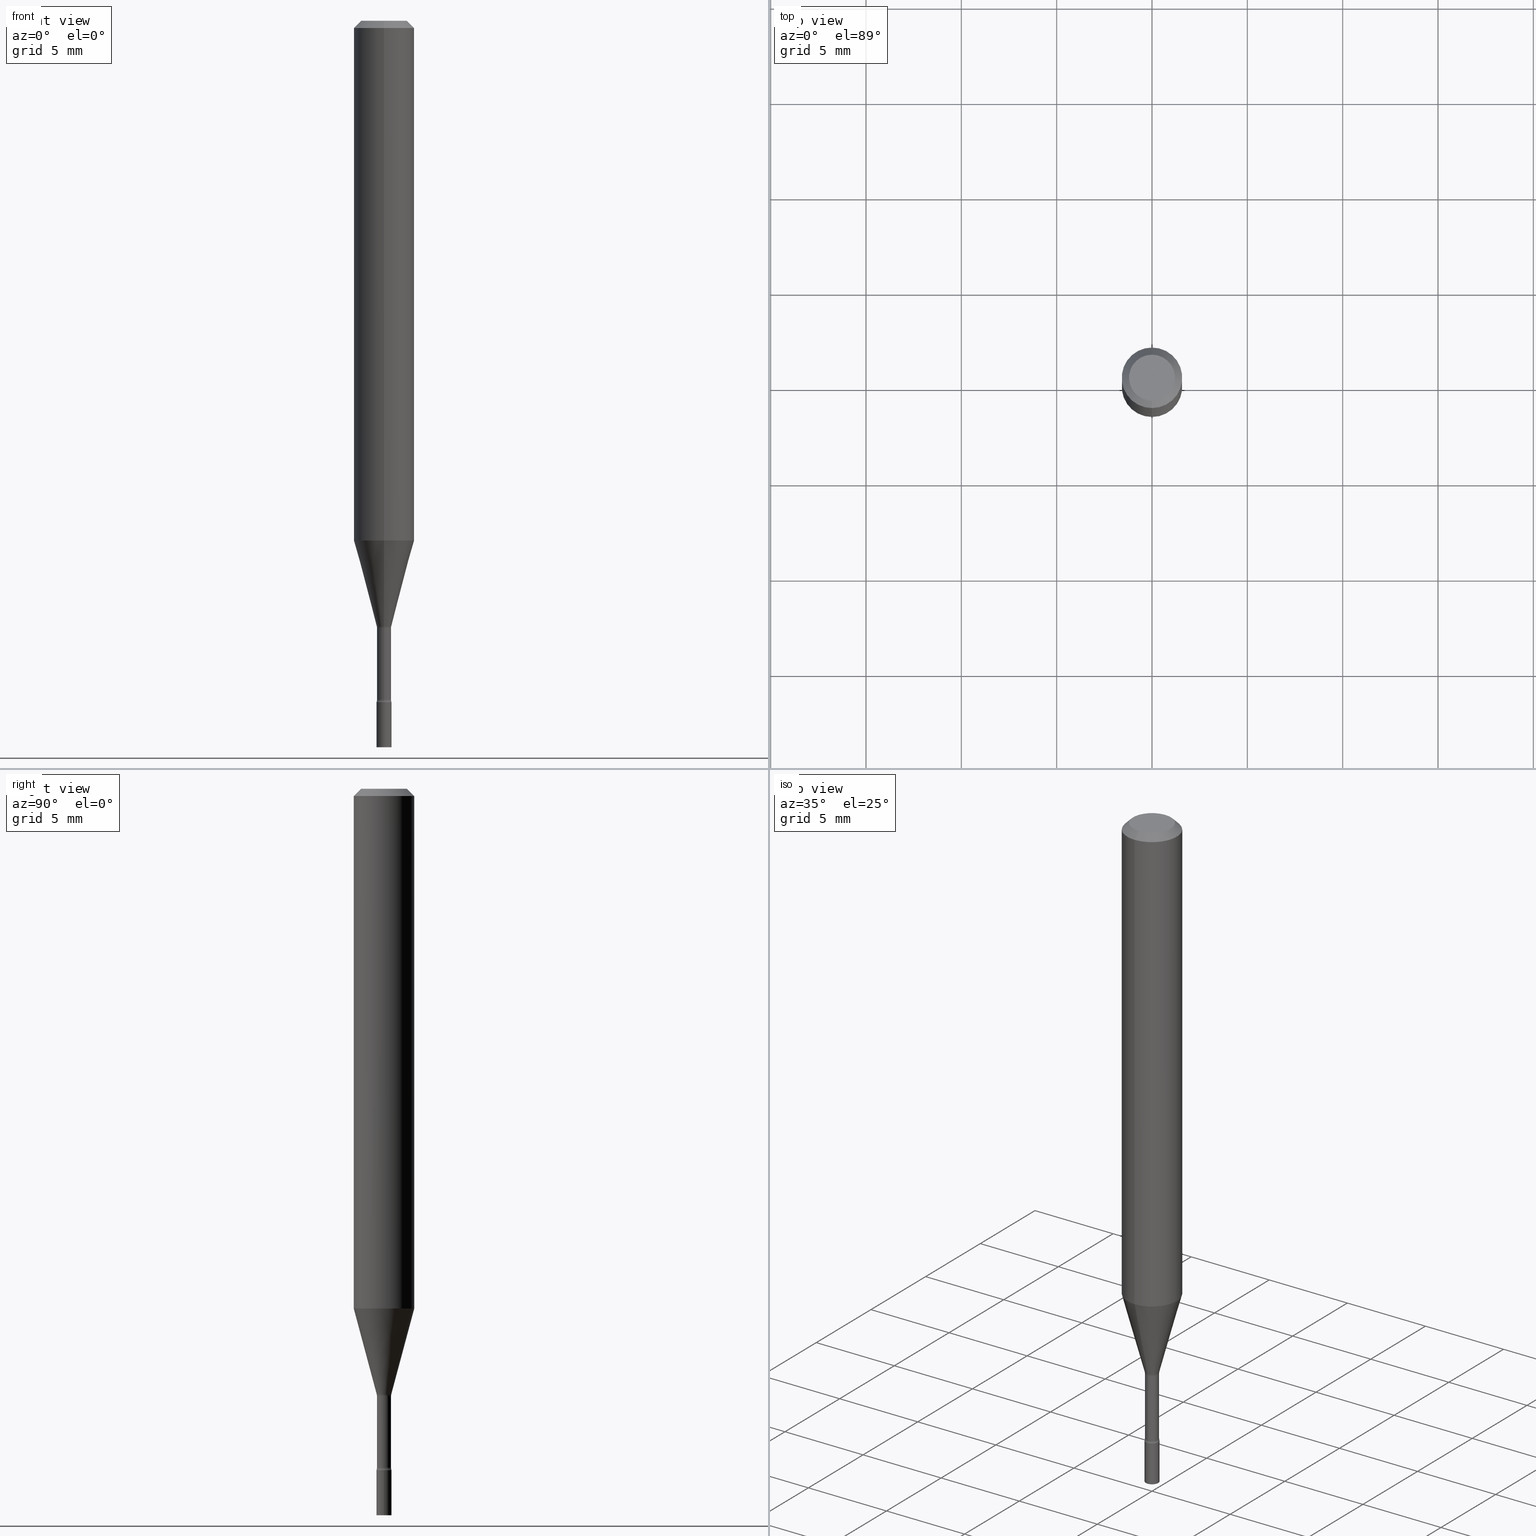
[diagram: canonical four-view strip — front | top / right | iso, engineering-drawing reading convention]
A machine part, canonical four-view strip (front | top / right | iso — engineering-drawing reading convention). The complete STEP part file that produces these views, byte-faithful:
ISO-10303-21;
HEADER;
FILE_DESCRIPTION (( 'STEP AP203' ),
    '1' );
FILE_NAME ('01316.STEP',
    '2024-03-08T21:13:43',
    ( '' ),
    ( '' ),
    'SwSTEP 2.0',
    'SolidWorks 2023',
    '' );
FILE_SCHEMA (( 'CONFIG_CONTROL_DESIGN' ));
ENDSEC;

DATA;
#1 = CARTESIAN_POINT ( 'NONE',  ( 0.000000000000000000, 0.000000000000000000, 0.000000000000000000 ) ) ;
#2 = DIRECTION ( 'NONE',  ( -2.445472227515732089E-29, 3.491476439303002674E-15, 1.000000000000000000 ) ) ;
#3 = DIRECTION ( 'NONE',  ( -6.982962677686266711E-15, -1.000000000000000000, 3.491476439303003069E-15 ) ) ;
#4 = EDGE_CURVE ( 'NONE', #138, #295, #76, .T. ) ;
#5 = CALENDAR_DATE ( 2024, 8, 3 ) ;
#6 = DIRECTION ( 'NONE',  ( 6.982962677686265922E-15, 1.000000000000000000, -3.483106191921935554E-15 ) ) ;
#7 = CC_DESIGN_PERSON_AND_ORGANIZATION_ASSIGNMENT ( #407, #452, ( #499 ) ) ;
#8 = TOROIDAL_SURFACE ( 'NONE', #297, 0.02955000000000002763, 0.01500000000000001506 ) ;
#9 = AXIS2_PLACEMENT_3D ( 'NONE', #273, #186, #345 ) ;
#10 = ORGANIZATION ( 'UNSPECIFIED', 'UNSPECIFIED', '' ) ;
#11 = CLOSED_SHELL ( 'NONE', ( #375, #119, #398, #304, #216, #336, #469, #190, #46, #418, #438, #26, #290, #428 ) ) ;
#12 = CARTESIAN_POINT ( 'NONE',  ( 3.668203209277704895E-29, -5.237222008264718177E-15, -1.500000000000000222 ) ) ;
#13 = COORDINATED_UNIVERSAL_TIME_OFFSET ( 5, 0, .BEHIND. ) ;
#14 = ORIENTED_EDGE ( 'NONE', *, *, #245, .T. ) ;
#15 = EDGE_LOOP ( 'NONE', ( #503, #497, #340, #147 ) ) ;
#16 = PERSON_AND_ORGANIZATION ( #102, #10 ) ;
#17 = ADVANCED_FACE ( 'NONE', ( #155 ), #66, .T. ) ;
#18 = ORIENTED_EDGE ( 'NONE', *, *, #139, .F. ) ;
#19 = CIRCLE ( 'NONE', #389, 0.06250000000000000000 ) ;
#20 = VERTEX_POINT ( 'NONE', #426 ) ;
#21 = ORIENTED_EDGE ( 'NONE', *, *, #256, .F. ) ;
#22 = ORIENTED_EDGE ( 'NONE', *, *, #283, .T. ) ;
#23 = DIRECTION ( 'NONE',  ( -6.982962677686265922E-15, -1.000000000000000000, 0.000000000000000000 ) ) ;
#24 = CIRCLE ( 'NONE', #348, 0.06250000000000000000 ) ;
#25 = TOROIDAL_SURFACE ( 'NONE', #293, 0.02955000000000000335, 0.01500000000000002720 ) ;
#26 = ADVANCED_FACE ( 'NONE', ( #352 ), #8, .F. ) ;
#27 = DIRECTION ( 'NONE',  ( 2.445472227515732089E-29, -3.491476439303002674E-15, -1.000000000000000000 ) ) ;
#28 = EDGE_CURVE ( 'NONE', #59, #220, #60, .T. ) ;
#29 = CARTESIAN_POINT ( 'NONE',  ( 3.440774610302487541E-29, -4.912514243752305891E-15, -1.407000000000000028 ) ) ;
#30 = CC_DESIGN_PERSON_AND_ORGANIZATION_ASSIGNMENT ( #361, #249, ( #502 ) ) ;
#31 = DIRECTION ( 'NONE',  ( -2.445472227515732089E-29, 3.491476439303002674E-15, 1.000000000000000000 ) ) ;
#32 = PLANE ( 'NONE',  #110 ) ;
#33 = DIRECTION ( 'NONE',  ( -2.445468806185136597E-29, 3.491481338843145583E-15, 1.000000000000000000 ) ) ;
#34 = CIRCLE ( 'NONE', #333, 0.01455000000000000217 ) ;
#35 = FACE_OUTER_BOUND ( 'NONE', #179, .T. ) ;
#36 = DIRECTION ( 'NONE',  ( -6.982962677686265922E-15, -1.000000000000000000, 4.370956789862821150E-15 ) ) ;
#37 = CARTESIAN_POINT ( 'NONE',  ( 1.101341240428499544E-16, 0.01549999999999509062, -1.407000000000000028 ) ) ;
#38 = CARTESIAN_POINT ( 'NONE',  ( 2.755524256971568781E-16, 0.01506111260565961597, -1.250092501787273269 ) ) ;
#39 = DIRECTION ( 'NONE',  ( -1.807323732225328562E-15, -0.2588190451025179639, 0.9659258262890689783 ) ) ;
#40 = DIRECTION ( 'NONE',  ( 2.438088387897960049E-29, -3.491481338843145188E-15, -1.000000000000000000 ) ) ;
#41 = DIRECTION ( 'NONE',  ( -2.445472227515732089E-29, 3.491476439303002674E-15, 1.000000000000000000 ) ) ;
#42 = CARTESIAN_POINT ( 'NONE',  ( 3.066560516747692945E-29, -4.378223425909886910E-15, -1.253974787463811191 ) ) ;
#43 = PERSON_AND_ORGANIZATION ( #102, #10 ) ;
#44 = VECTOR ( 'NONE', #310, 39.37007874015748143 ) ;
#45 = DIRECTION ( 'NONE',  ( -6.982962677686266711E-15, -1.000000000000000000, 0.000000000000000000 ) ) ;
#46 = ADVANCED_FACE ( 'NONE', ( #189 ), #251, .T. ) ;
#47 = DIRECTION ( 'NONE',  ( -2.445472227515732089E-29, 3.491476439303002674E-15, 1.000000000000000000 ) ) ;
#48 = COORDINATED_UNIVERSAL_TIME_OFFSET ( 5, 0, .BEHIND. ) ;
#49 = CC_DESIGN_DATE_AND_TIME_ASSIGNMENT ( #365, #486, ( #152 ) ) ;
#50 = CARTESIAN_POINT ( 'NONE',  ( -1.051711872097511524E-16, -0.01506111260566834510, -1.250092501787273269 ) ) ;
#51 = APPROVAL_STATUS ( 'not_yet_approved' ) ;
#52 = DIRECTION ( 'NONE',  ( -2.445472227515732369E-29, 3.491476439303002674E-15, 1.000000000000000000 ) ) ;
#53 = ORIENTED_EDGE ( 'NONE', *, *, #322, .F. ) ;
#54 = SECURITY_CLASSIFICATION_LEVEL ( 'unclassified' ) ;
#55 = CIRCLE ( 'NONE', #317, 0.01455000000000000217 ) ;
#56 = ORIENTED_EDGE ( 'NONE', *, *, #342, .F. ) ;
#57 = MANIFOLD_SOLID_BREP ( 'Body-Move/Copy2[2]', #11 ) ;
#58 = ORIENTED_EDGE ( 'NONE', *, *, #506, .T. ) ;
#59 = VERTEX_POINT ( 'NONE', #150 ) ;
#60 = CIRCLE ( 'NONE', #347, 0.06250000000000000000 ) ;
#61 = VECTOR ( 'NONE', #441, 39.37007874015748143 ) ;
#62 = ORIENTED_EDGE ( 'NONE', *, *, #82, .F. ) ;
#63 = ORIENTED_EDGE ( 'NONE', *, *, #161, .T. ) ;
#64 = ORIENTED_EDGE ( 'NONE', *, *, #325, .T. ) ;
#65 = CARTESIAN_POINT ( 'NONE',  ( 1.033839680530946048E-16, 0.01455000000000000737, -5.080098219185871194E-17 ) ) ;
#66 = CYLINDRICAL_SURFACE ( 'NONE', #231, 0.01549999999999999989 ) ;
#67 = AXIS2_PLACEMENT_3D ( 'NONE', #353, #225, #516 ) ;
#68 = EDGE_CURVE ( 'NONE', #371, #493, #87, .T. ) ;
#69 = EDGE_LOOP ( 'NONE', ( #312, #456, #104, #474 ) ) ;
#70 = DIRECTION ( 'NONE',  ( -6.982962677686265922E-15, -1.000000000000000000, 0.000000000000000000 ) ) ;
#71 = DIRECTION ( 'NONE',  ( -1.000000000000000000, 6.982962677686265922E-15, -4.876176775795935793E-29 ) ) ;
#72 = DIRECTION ( 'NONE',  ( -2.445472227515732089E-29, 3.491476439303002674E-15, 1.000000000000000000 ) ) ;
#73 = CARTESIAN_POINT ( 'NONE',  ( 3.316907271900976096E-16, 0.04749999999999999362, -1.803022026949055047E-16 ) ) ;
#74 = DIRECTION ( 'NONE',  ( -2.445472227515732089E-29, 3.491476439303002674E-15, 1.000000000000000000 ) ) ;
#75 = CC_DESIGN_APPROVAL ( #124, ( #502 ) ) ;
#76 = CIRCLE ( 'NONE', #369, 0.01506111260566398054 ) ;
#77 = CARTESIAN_POINT ( 'NONE',  ( 3.057066494946437721E-29, -4.364668516939611212E-15, -1.250092501787273269 ) ) ;
#78 = DIRECTION ( 'NONE',  ( -6.982962677686265922E-15, -1.000000000000000000, 0.000000000000000000 ) ) ;
#79 = DIRECTION ( 'NONE',  ( -2.445472227515732089E-29, 3.491476439303002674E-15, 1.000000000000000000 ) ) ;
#80 = DIRECTION ( 'NONE',  ( -2.445472227515732089E-29, 3.491476439303002674E-15, 1.000000000000000000 ) ) ;
#81 = CARTESIAN_POINT ( 'NONE',  ( 0.01549999999999999989, -1.082359215041371286E-16, 7.558074002483699918E-31 ) ) ;
#82 = EDGE_CURVE ( 'NONE', #373, #453, #107, .T. ) ;
#83 = DIRECTION ( 'NONE',  ( -2.445472227515732089E-29, 3.491476439303002674E-15, 1.000000000000000000 ) ) ;
#84 = DIRECTION ( 'NONE',  ( -2.445468806185136877E-29, 3.491481338843145188E-15, 1.000000000000000000 ) ) ;
#85 = EDGE_CURVE ( 'NONE', #377, #254, #19, .T. ) ;
#86 = COORDINATED_UNIVERSAL_TIME_OFFSET ( 5, 0, .BEHIND. ) ;
#87 = CIRCLE ( 'NONE', #9, 0.01549999999999999989 ) ;
#88 = DIRECTION ( 'NONE',  ( 1.000000000000000000, -7.105427357601001070E-15, 4.926315448540020713E-29 ) ) ;
#89 =( NAMED_UNIT ( * ) PLANE_ANGLE_UNIT ( ) SI_UNIT ( $, .RADIAN. ) );
#90 = CARTESIAN_POINT ( 'NONE',  ( 3.668208341273605262E-31, -5.237214658954514982E-17, -0.01500000000000003067 ) ) ;
#91 = DATE_AND_TIME ( #128, #445 ) ;
#92 = CARTESIAN_POINT ( 'NONE',  ( -1.051711872097511524E-16, -0.01506111260566834510, -1.250092501787273269 ) ) ;
#93 = APPROVAL_ROLE ( '' ) ;
#94 = VECTOR ( 'NONE', #475, 39.37007874015748143 ) ;
#95 = LOCAL_TIME ( 16, 13, 43.00000000000000000, #490 ) ;
#96 = EDGE_LOOP ( 'NONE', ( #330, #126, #460, #22 ) ) ;
#97 = PRODUCT_DEFINITION_SHAPE ( 'NONE', 'NONE',  #306 ) ;
#98 = EDGE_LOOP ( 'NONE', ( #258, #341 ) ) ;
#99 = ADVANCED_FACE ( 'NONE', ( #386 ), #221, .T. ) ;
#100 = ORIENTED_EDGE ( 'NONE', *, *, #505, .T. ) ;
#101 = EDGE_CURVE ( 'NONE', #472, #20, #243, .T. ) ;
#102 = PERSON ( 'UNSPECIFIED', 'UNSPECIFIED', 'UNSPECIFIED', ('UNSPECIFIED'), ('UNSPECIFIED'), ('UNSPECIFIED') ) ;
#103 = CIRCLE ( 'NONE', #292, 0.04749999999999999362 ) ;
#104 = ORIENTED_EDGE ( 'NONE', *, *, #457, .F. ) ;
#105 = CARTESIAN_POINT ( 'NONE',  ( 3.427927750093484217E-29, -4.894172332144594873E-15, -1.401746667724196538 ) ) ;
#106 = EDGE_CURVE ( 'NONE', #254, #220, #391, .T. ) ;
#107 = LINE ( 'NONE', #65, #44 ) ;
#108 = ORIENTED_EDGE ( 'NONE', *, *, #175, .T. ) ;
#109 = VECTOR ( 'NONE', #52, 39.37007874015748143 ) ;
#110 = AXIS2_PLACEMENT_3D ( 'NONE', #514, #473, #277 ) ;
#111 = PLANE ( 'NONE',  #261 ) ;
#112 = CARTESIAN_POINT ( 'NONE',  ( 0.000000000000000000, 0.000000000000000000, 0.000000000000000000 ) ) ;
#113 = LINE ( 'NONE', #227, #253 ) ;
#114 = ORIENTED_EDGE ( 'NONE', *, *, #85, .T. ) ;
#115 = LINE ( 'NONE', #440, #368 ) ;
#116 = CARTESIAN_POINT ( 'NONE',  ( 0.000000000000000000, 0.000000000000000000, 0.000000000000000000 ) ) ;
#117 = CARTESIAN_POINT ( 'NONE',  ( -1.016021069603352178E-16, -0.01455000000000000737, 5.080098219185871194E-17 ) ) ;
#118 = DIRECTION ( 'NONE',  ( -6.982962677686265922E-15, -1.000000000000000000, 3.491476439303002674E-15 ) ) ;
#119 = ADVANCED_FACE ( 'NONE', ( #184 ), #316, .T. ) ;
#120 = FACE_OUTER_BOUND ( 'NONE', #96, .T. ) ;
#121 = LINE ( 'NONE', #236, #182 ) ;
#122 = EDGE_CURVE ( 'NONE', #142, #371, #482, .T. ) ;
#123 = DIRECTION ( 'NONE',  ( -6.982962677686265922E-15, -1.000000000000000000, 3.491476439303002674E-15 ) ) ;
#124 = APPROVAL ( #173, 'UNSPECIFIED' ) ;
#125 = APPROVAL_DATE_TIME ( #412, #124 ) ;
#126 = ORIENTED_EDGE ( 'NONE', *, *, #287, .F. ) ;
#127 = LINE ( 'NONE', #81, #409 ) ;
#128 = CALENDAR_DATE ( 2024, 8, 3 ) ;
#129 = AXIS2_PLACEMENT_3D ( 'NONE', #397, #360, #118 ) ;
#130 = APPROVAL_PERSON_ORGANIZATION ( #16, #124, #399 ) ;
#131 = FACE_OUTER_BOUND ( 'NONE', #470, .T. ) ;
#132 = PERSON_AND_ORGANIZATION_ROLE ( 'creator' ) ;
#133 = CARTESIAN_POINT ( 'NONE',  ( 3.057066494946437721E-29, -4.364668516939611212E-15, -1.250092501787273269 ) ) ;
#134 = APPLICATION_PROTOCOL_DEFINITION ( 'international standard', 'config_control_design', 1994, #387 ) ;
#135 = ORIENTED_EDGE ( 'NONE', *, *, #106, .T. ) ;
#136 = AXIS2_PLACEMENT_3D ( 'NONE', #314, #27, #263 ) ;
#137 = LOCAL_TIME ( 16, 13, 43.00000000000000000, #13 ) ;
#138 = VERTEX_POINT ( 'NONE', #38 ) ;
#139 = EDGE_CURVE ( 'NONE', #338, #335, #201, .T. ) ;
#140 = EDGE_LOOP ( 'NONE', ( #114, #135, #181, #53 ) ) ;
#141 = CC_DESIGN_DATE_AND_TIME_ASSIGNMENT ( #91, #252, ( #306 ) ) ;
#142 = VERTEX_POINT ( 'NONE', #197 ) ;
#143 = CIRCLE ( 'NONE', #298, 0.01455000000000001084 ) ;
#144 = AXIS2_PLACEMENT_3D ( 'NONE', #77, #235, #392 ) ;
#145 = ORIENTED_EDGE ( 'NONE', *, *, #325, .F. ) ;
#146 = DESIGN_CONTEXT ( 'detailed design', #387, 'design' ) ;
#147 = ORIENTED_EDGE ( 'NONE', *, *, #161, .F. ) ;
#148 = CARTESIAN_POINT ( 'NONE',  ( 3.057066494946437721E-29, -4.364668516939611212E-15, -1.250092501787273269 ) ) ;
#149 = CARTESIAN_POINT ( 'NONE',  ( 0.01549999999999999989, -5.020750165256442268E-15, -1.407000000000000028 ) ) ;
#150 = CARTESIAN_POINT ( 'NONE',  ( -4.364351673553912750E-16, -0.06250000000000005551, -0.01499999999999981209 ) ) ;
#151 = VECTOR ( 'NONE', #512, 39.37007874015748143 ) ;
#152 = SECURITY_CLASSIFICATION ( '', '', #54 ) ;
#153 = CARTESIAN_POINT ( 'NONE',  ( 3.440779424114635715E-29, -4.912507350099324205E-15, -1.407000000000000028 ) ) ;
#154 = DIRECTION ( 'NONE',  ( -6.982962677686265922E-15, -1.000000000000000000, 3.491476439303002674E-15 ) ) ;
#155 = FACE_OUTER_BOUND ( 'NONE', #218, .T. ) ;
#156 = DIRECTION ( 'NONE',  ( 1.000000000000000000, -7.105427357601001070E-15, 4.926315448540020713E-29 ) ) ;
#157 = CARTESIAN_POINT ( 'NONE',  ( 3.427932545932245899E-29, -4.894165464230526570E-15, -1.401746667724196538 ) ) ;
#158 = DIRECTION ( 'NONE',  ( 7.105427357601001859E-15, 1.000000000000000000, 0.000000000000000000 ) ) ;
#159 = APPROVAL_PERSON_ORGANIZATION ( #329, #363, #405 ) ;
#160 = FACE_OUTER_BOUND ( 'NONE', #343, .T. ) ;
#161 = EDGE_CURVE ( 'NONE', #254, #377, #233, .T. ) ;
#162 = FACE_OUTER_BOUND ( 'NONE', #140, .T. ) ;
#163 = DIRECTION ( 'NONE',  ( -2.445472227515732089E-29, 3.491476439303002674E-15, 1.000000000000000000 ) ) ;
#164 = MECHANICAL_CONTEXT ( 'NONE', #187, 'mechanical' ) ;
#165 = CARTESIAN_POINT ( 'NONE',  ( 7.070873529321127963E-46, -1.009530513376364482E-31, -2.891414365602579596E-17 ) ) ;
#166 = DATE_AND_TIME ( #5, #454 ) ;
#167 = CARTESIAN_POINT ( 'NONE',  ( -1.016021069603045262E-16, -0.01455000000000438061, -1.253974787463811191 ) ) ;
#168 = VECTOR ( 'NONE', #39, 39.37007874015749564 ) ;
#169 = APPLICATION_PROTOCOL_DEFINITION ( 'international standard', 'config_control_design', 1994, #187 ) ;
#170 = LINE ( 'NONE', #50, #168 ) ;
#171 = DIRECTION ( 'NONE',  ( 1.000000000000000000, 0.000000000000000000, 0.000000000000000000 ) ) ;
#172 = EDGE_LOOP ( 'NONE', ( #331, #224, #431, #424 ) ) ;
#173 = APPROVAL_STATUS ( 'not_yet_approved' ) ;
#174 = ORIENTED_EDGE ( 'NONE', *, *, #417, .F. ) ;
#175 = EDGE_CURVE ( 'NONE', #449, #59, #121, .T. ) ;
#176 = CIRCLE ( 'NONE', #203, 0.01506111260566398054 ) ;
#177 = AXIS2_PLACEMENT_3D ( 'NONE', #73, #200, #270 ) ;
#178 = EDGE_CURVE ( 'NONE', #338, #373, #143, .T. ) ;
#179 = EDGE_LOOP ( 'NONE', ( #466, #302, #255, #56 ) ) ;
#180 = ORIENTED_EDGE ( 'NONE', *, *, #457, .T. ) ;
#181 = ORIENTED_EDGE ( 'NONE', *, *, #28, .F. ) ;
#182 = VECTOR ( 'NONE', #241, 39.37007874015748143 ) ;
#183 = CIRCLE ( 'NONE', #234, 0.01500000000000002720 ) ;
#184 = FACE_OUTER_BOUND ( 'NONE', #264, .T. ) ;
#185 = UNCERTAINTY_MEASURE_WITH_UNIT (LENGTH_MEASURE( 1.000000000000000082E-05 ), #484, 'distance_accuracy_value', 'NONE');
#186 = DIRECTION ( 'NONE',  ( -2.445468806185136597E-29, 3.491481338843145583E-15, 1.000000000000000000 ) ) ;
#187 = APPLICATION_CONTEXT ( 'configuration controlled 3d designs of mechanical parts and assemblies' ) ;
#188 = DIRECTION ( 'NONE',  ( 1.000000000000000000, -6.982962677686238312E-15, 0.000000000000000000 ) ) ;
#189 = FACE_OUTER_BOUND ( 'NONE', #250, .T. ) ;
#190 = ADVANCED_FACE ( 'NONE', ( #401 ), #437, .T. ) ;
#191 = DIRECTION ( 'NONE',  ( -6.982962677686265922E-15, -1.000000000000000000, 3.491476439303002674E-15 ) ) ;
#192 = DIRECTION ( 'NONE',  ( 1.000000000000000000, -6.982962677686266711E-15, 4.876176775795935232E-29 ) ) ;
#193 = EDGE_CURVE ( 'NONE', #373, #338, #326, .T. ) ;
#194 = PLANE ( 'NONE',  #510 ) ;
#195 = EDGE_LOOP ( 'NONE', ( #215, #459 ) ) ;
#196 = CARTESIAN_POINT ( 'NONE',  ( -2.063465471255985244E-16, -0.02955000000000438526, -1.253974787463811191 ) ) ;
#197 = CARTESIAN_POINT ( 'NONE',  ( -0.01549999999999999989, -4.964734001965696802E-15, -1.500000000000000222 ) ) ;
#198 = DIRECTION ( 'NONE',  ( -6.982962677686263555E-15, -1.000000000000000000, 0.000000000000000000 ) ) ;
#199 = EDGE_CURVE ( 'NONE', #20, #472, #461, .T. ) ;
#200 = DIRECTION ( 'NONE',  ( 2.445472227515731808E-29, -3.491476439303002674E-15, -1.000000000000000000 ) ) ;
#201 = LINE ( 'NONE', #117, #61 ) ;
#202 = CARTESIAN_POINT ( 'NONE',  ( 3.066560516747692945E-29, -4.378223425909886910E-15, -1.253974787463811191 ) ) ;
#203 = AXIS2_PLACEMENT_3D ( 'NONE', #404, #281, #279 ) ;
#204 = LENGTH_MEASURE_WITH_UNIT ( LENGTH_MEASURE( 0.02539999999999999897 ), #307 );
#205 = CARTESIAN_POINT ( 'NONE',  ( -4.364351673553916201E-16, -0.06250000000000000000, 2.182172774564376671E-16 ) ) ;
#206 = CARTESIAN_POINT ( 'NONE',  ( 0.000000000000000000, 0.000000000000000000, 0.000000000000000000 ) ) ;
#207 = CARTESIAN_POINT ( 'NONE',  ( 0.000000000000000000, 0.000000000000000000, 0.000000000000000000 ) ) ;
#208 = DATE_AND_TIME ( #240, #95 ) ;
#209 = FACE_OUTER_BOUND ( 'NONE', #332, .T. ) ;
#210 = CIRCLE ( 'NONE', #501, 0.04749999999999999362 ) ;
#211 = PERSON_AND_ORGANIZATION ( #102, #10 ) ;
#212 = CIRCLE ( 'NONE', #67, 0.01549999999999999989 ) ;
#213 = ORIENTED_EDGE ( 'NONE', *, *, #139, .T. ) ;
#214 = APPROVAL_DATE_TIME ( #208, #217 ) ;
#215 = ORIENTED_EDGE ( 'NONE', *, *, #199, .F. ) ;
#216 = ADVANCED_FACE ( 'NONE', ( #162 ), #320, .T. ) ;
#217 = APPROVAL ( #51, 'UNSPECIFIED' ) ;
#218 = EDGE_LOOP ( 'NONE', ( #515, #100, #14, #496 ) ) ;
#219 = EDGE_LOOP ( 'NONE', ( #374, #63, #259, #410 ) ) ;
#220 = VERTEX_POINT ( 'NONE', #447 ) ;
#221 = CYLINDRICAL_SURFACE ( 'NONE', #477, 0.01549999999999999989 ) ;
#222 = CONICAL_SURFACE ( 'NONE', #519, 0.01506111260566398054, 0.2617993877991501295 ) ;
#223 = AXIS2_PLACEMENT_3D ( 'NONE', #480, #395, #154 ) ;
#224 = ORIENTED_EDGE ( 'NONE', *, *, #178, .F. ) ;
#225 = DIRECTION ( 'NONE',  ( -2.445468806185136597E-29, 3.491481338843145583E-15, 1.000000000000000000 ) ) ;
#226 = EDGE_CURVE ( 'NONE', #220, #59, #24, .T. ) ;
#227 = CARTESIAN_POINT ( 'NONE',  ( 4.364351673553919652E-16, 0.06249999999999995143, -0.01500000000000024751 ) ) ;
#228 = CC_DESIGN_PERSON_AND_ORGANIZATION_ASSIGNMENT ( #443, #132, ( #306 ) ) ;
#229 = DIRECTION ( 'NONE',  ( -2.445472227515732089E-29, 3.491476439303002674E-15, 1.000000000000000000 ) ) ;
#230 = CARTESIAN_POINT ( 'NONE',  ( -4.364351673553655384E-16, -0.06250000000000376088, -1.073048163777072794 ) ) ;
#231 = AXIS2_PLACEMENT_3D ( 'NONE', #112, #465, #267 ) ;
#232 = CARTESIAN_POINT ( 'NONE',  ( 0.000000000000000000, 0.000000000000000000, 0.000000000000000000 ) ) ;
#233 = CIRCLE ( 'NONE', #467, 0.06250000000000000000 ) ;
#234 = AXIS2_PLACEMENT_3D ( 'NONE', #344, #156, #315 ) ;
#235 = DIRECTION ( 'NONE',  ( -2.445472227515732089E-29, 3.491476439303002674E-15, 1.000000000000000000 ) ) ;
#236 = CARTESIAN_POINT ( 'NONE',  ( -4.287811248607203282E-16, -0.06250000000000005551, -0.01499999999999981209 ) ) ;
#237 = CARTESIAN_POINT ( 'NONE',  ( 3.427927750093484217E-29, -4.894172332144594873E-15, -1.401746667724196538 ) ) ;
#238 = CARTESIAN_POINT ( 'NONE',  ( 3.440779424114635715E-29, -4.912507350099324205E-15, -1.407000000000000028 ) ) ;
#239 = DIRECTION ( 'NONE',  ( -6.982962677686265922E-15, -1.000000000000000000, 3.483106191921935554E-15 ) ) ;
#240 = CALENDAR_DATE ( 2024, 8, 3 ) ;
#241 = DIRECTION ( 'NONE',  ( -4.851104656540964275E-15, -0.7071067811865500152, -0.7071067811865450192 ) ) ;
#242 = DIRECTION ( 'NONE',  ( -6.982962677686266711E-15, -1.000000000000000000, 0.000000000000000000 ) ) ;
#243 = CIRCLE ( 'NONE', #308, 0.01549999999999999989 ) ;
#244 = APPROVAL_STATUS ( 'not_yet_approved' ) ;
#245 = EDGE_CURVE ( 'NONE', #381, #493, #127, .T. ) ;
#246 = CARTESIAN_POINT ( 'NONE',  ( 2.099653784171440428E-16, 0.02954999999999512877, -1.401746667724196538 ) ) ;
#247 = PERSON_AND_ORGANIZATION ( #102, #10 ) ;
#248 = CARTESIAN_POINT ( 'NONE',  ( 4.440892098500886486E-16, 0.06249999999999623218, -1.073048163777073238 ) ) ;
#249 = PERSON_AND_ORGANIZATION_ROLE ( 'design_supplier' ) ;
#250 = EDGE_LOOP ( 'NONE', ( #337, #145, #498, #382 ) ) ;
#251 = CONICAL_SURFACE ( 'NONE', #136, 0.06250000000000000000, 0.7853981633974483900 ) ;
#252 = DATE_TIME_ROLE ( 'creation_date' ) ;
#253 = VECTOR ( 'NONE', #511, 39.37007874015748143 ) ;
#254 = VERTEX_POINT ( 'NONE', #248 ) ;
#255 = ORIENTED_EDGE ( 'NONE', *, *, #101, .T. ) ;
#256 = EDGE_CURVE ( 'NONE', #295, #377, #170, .T. ) ;
#257 = SHAPE_DEFINITION_REPRESENTATION ( #97, #451 ) ;
#258 = ORIENTED_EDGE ( 'NONE', *, *, #359, .F. ) ;
#259 = ORIENTED_EDGE ( 'NONE', *, *, #322, .T. ) ;
#260 = AXIS2_PLACEMENT_3D ( 'NONE', #238, #396, #78 ) ;
#261 = AXIS2_PLACEMENT_3D ( 'NONE', #430, #471, #481 ) ;
#262 = ORIENTED_EDGE ( 'NONE', *, *, #193, .T. ) ;
#263 = DIRECTION ( 'NONE',  ( 6.982962677686265922E-15, 1.000000000000000000, -3.483106191921935554E-15 ) ) ;
#264 = EDGE_LOOP ( 'NONE', ( #305, #301, #296, #18 ) ) ;
#265 = EDGE_CURVE ( 'NONE', #453, #335, #34, .T. ) ;
#266 = CIRCLE ( 'NONE', #402, 0.01549999999999999989 ) ;
#267 = DIRECTION ( 'NONE',  ( 1.000000000000000000, -6.982962677686266711E-15, 4.876176775795935232E-29 ) ) ;
#268 = EDGE_CURVE ( 'NONE', #449, #294, #103, .T. ) ;
#269 = PRODUCT_RELATED_PRODUCT_CATEGORY ( 'detail', '', ( #499 ) ) ;
#270 = DIRECTION ( 'NONE',  ( 6.982962677686265922E-15, 1.000000000000000000, -3.491476439303002674E-15 ) ) ;
#271 = CARTESIAN_POINT ( 'NONE',  ( 2.624109483303584548E-29, -3.746522382064999961E-15, -1.073048163777073016 ) ) ;
#272 = CARTESIAN_POINT ( 'NONE',  ( 1.082359215041737983E-16, 0.01549999999999476276, -1.500000000000000222 ) ) ;
#273 = CARTESIAN_POINT ( 'NONE',  ( 3.440774610302487541E-29, -4.912514243752305891E-15, -1.407000000000000028 ) ) ;
#274 = DIRECTION ( 'NONE',  ( 1.839019923739599526E-15, 0.2588190451025248473, 0.9659258262890673130 ) ) ;
#275 = DIRECTION ( 'NONE',  ( -2.445472227515732089E-29, 3.491476439303002674E-15, 1.000000000000000000 ) ) ;
#276 = AXIS2_PLACEMENT_3D ( 'NONE', #246, #88, #158 ) ;
#277 = DIRECTION ( 'NONE',  ( -6.982962677686265922E-15, -1.000000000000000000, 3.491476439303002674E-15 ) ) ;
#278 = DIRECTION ( 'NONE',  ( -6.982962677686266711E-15, -1.000000000000000000, 0.000000000000000000 ) ) ;
#279 = DIRECTION ( 'NONE',  ( -6.982962677686265922E-15, -1.000000000000000000, 0.000000000000000000 ) ) ;
#280 = CARTESIAN_POINT ( 'NONE',  ( 2.624109483303584548E-29, -3.746522382064999961E-15, -1.073048163777073016 ) ) ;
#281 = DIRECTION ( 'NONE',  ( -2.445472227515732089E-29, 3.491476439303002674E-15, 1.000000000000000000 ) ) ;
#282 = CALENDAR_DATE ( 2024, 8, 3 ) ;
#283 = EDGE_CURVE ( 'NONE', #335, #453, #55, .T. ) ;
#284 = DIRECTION ( 'NONE',  ( -2.445468806185136597E-29, 3.491481338843145583E-15, 1.000000000000000000 ) ) ;
#285 = AXIS2_PLACEMENT_3D ( 'NONE', #157, #80, #45 ) ;
#286 =( NAMED_UNIT ( * ) SI_UNIT ( $, .STERADIAN. ) SOLID_ANGLE_UNIT ( ) );
#287 = EDGE_CURVE ( 'NONE', #295, #138, #176, .T. ) ;
#288 = CALENDAR_DATE ( 2024, 8, 3 ) ;
#289 = CYLINDRICAL_SURFACE ( 'NONE', #129, 0.01455000000000000737 ) ;
#290 = ADVANCED_FACE ( 'NONE', ( #439 ), #289, .T. ) ;
#291 = ORIENTED_EDGE ( 'NONE', *, *, #85, .F. ) ;
#292 = AXIS2_PLACEMENT_3D ( 'NONE', #328, #163, #408 ) ;
#293 = AXIS2_PLACEMENT_3D ( 'NONE', #313, #351, #385 ) ;
#294 = VERTEX_POINT ( 'NONE', #321 ) ;
#295 = VERTEX_POINT ( 'NONE', #92 ) ;
#296 = ORIENTED_EDGE ( 'NONE', *, *, #283, .F. ) ;
#297 = AXIS2_PLACEMENT_3D ( 'NONE', #105, #72, #384 ) ;
#298 = AXIS2_PLACEMENT_3D ( 'NONE', #357, #354, #278 ) ;
#299 = APPROVAL_PERSON_ORGANIZATION ( #247, #217, #93 ) ;
#300 = CLOSED_SHELL ( 'NONE', ( #99, #400, #17, #415 ) ) ;
#301 = ORIENTED_EDGE ( 'NONE', *, *, #82, .T. ) ;
#302 = ORIENTED_EDGE ( 'NONE', *, *, #362, .T. ) ;
#303 = DIRECTION ( 'NONE',  ( -6.982962677686265922E-15, -1.000000000000000000, 3.483106191921935554E-15 ) ) ;
#304 = ADVANCED_FACE ( 'NONE', ( #491 ), #420, .T. ) ;
#305 = ORIENTED_EDGE ( 'NONE', *, *, #178, .T. ) ;
#306 = PRODUCT_DEFINITION ( 'UNKNOWN', '', #502, #146 ) ;
#307 =( LENGTH_UNIT ( ) NAMED_UNIT ( * ) SI_UNIT ( $, .METRE. ) );
#308 = AXIS2_PLACEMENT_3D ( 'NONE', #153, #378, #23 ) ;
#309 = AXIS2_PLACEMENT_3D ( 'NONE', #206, #372, #171 ) ;
#310 = DIRECTION ( 'NONE',  ( -2.445472227515732369E-29, 3.491476439303002674E-15, 1.000000000000000000 ) ) ;
#311 = FACE_OUTER_BOUND ( 'NONE', #513, .T. ) ;
#312 = ORIENTED_EDGE ( 'NONE', *, *, #359, .T. ) ;
#313 = CARTESIAN_POINT ( 'NONE',  ( 3.066556226485386764E-29, -4.378229569809696209E-15, -1.253974787463811191 ) ) ;
#314 = CARTESIAN_POINT ( 'NONE',  ( 3.668208341273605262E-31, -5.237214658954514982E-17, -0.01500000000000003067 ) ) ;
#315 = DIRECTION ( 'NONE',  ( 7.105427357601001859E-15, 1.000000000000000000, 0.000000000000000000 ) ) ;
#316 = CYLINDRICAL_SURFACE ( 'NONE', #444, 0.01455000000000000737 ) ;
#317 = AXIS2_PLACEMENT_3D ( 'NONE', #42, #318, #242 ) ;
#318 = DIRECTION ( 'NONE',  ( -2.445472227515732089E-29, 3.491476439303002674E-15, 1.000000000000000000 ) ) ;
#319 = PLANE ( 'NONE',  #177 ) ;
#320 = CYLINDRICAL_SURFACE ( 'NONE', #358, 0.06250000000000000000 ) ;
#321 = CARTESIAN_POINT ( 'NONE',  ( 3.840629472727447874E-16, 0.04749999999999999362, -1.947592745229184365E-16 ) ) ;
#322 = EDGE_CURVE ( 'NONE', #377, #59, #442, .T. ) ;
#323 = PERSON_AND_ORGANIZATION_ROLE ( 'classification_officer' ) ;
#324 = DIRECTION ( 'NONE',  ( -6.982962677686265922E-15, -1.000000000000000000, 0.000000000000000000 ) ) ;
#325 = EDGE_CURVE ( 'NONE', #294, #449, #210, .T. ) ;
#326 = CIRCLE ( 'NONE', #285, 0.01455000000000001084 ) ;
#327 = DIRECTION ( 'NONE',  ( -2.445472227515732089E-29, 3.491476439303002674E-15, 1.000000000000000000 ) ) ;
#328 = CARTESIAN_POINT ( 'NONE',  ( 7.070873529321127963E-46, -1.009530513376364482E-31, -2.891414365602579596E-17 ) ) ;
#329 = PERSON_AND_ORGANIZATION ( #102, #10 ) ;
#330 = ORIENTED_EDGE ( 'NONE', *, *, #506, .F. ) ;
#331 = ORIENTED_EDGE ( 'NONE', *, *, #362, .F. ) ;
#332 = EDGE_LOOP ( 'NONE', ( #419, #413, #291, #21 ) ) ;
#333 = AXIS2_PLACEMENT_3D ( 'NONE', #202, #483, #406 ) ;
#334 = EDGE_LOOP ( 'NONE', ( #62, #262, #213, #416 ) ) ;
#335 = VERTEX_POINT ( 'NONE', #167 ) ;
#336 = ADVANCED_FACE ( 'NONE', ( #209 ), #222, .T. ) ;
#337 = ORIENTED_EDGE ( 'NONE', *, *, #175, .F. ) ;
#338 = VERTEX_POINT ( 'NONE', #485 ) ;
#339 =( GEOMETRIC_REPRESENTATION_CONTEXT ( 3 ) GLOBAL_UNCERTAINTY_ASSIGNED_CONTEXT ( ( #185 ) ) GLOBAL_UNIT_ASSIGNED_CONTEXT ( ( #484, #89, #286 ) ) REPRESENTATION_CONTEXT ( 'NONE', 'WORKASPACE' ) );
#340 = ORIENTED_EDGE ( 'NONE', *, *, #256, .T. ) ;
#341 = ORIENTED_EDGE ( 'NONE', *, *, #505, .F. ) ;
#342 = EDGE_CURVE ( 'NONE', #338, #20, #379, .T. ) ;
#343 = EDGE_LOOP ( 'NONE', ( #64, #376 ) ) ;
#344 = CARTESIAN_POINT ( 'NONE',  ( 2.099653784171402710E-16, 0.02954999999999562491, -1.253974787463811191 ) ) ;
#345 = DIRECTION ( 'NONE',  ( 1.000000000000000000, -6.982962677686238312E-15, 0.000000000000000000 ) ) ;
#346 = FACE_OUTER_BOUND ( 'NONE', #98, .T. ) ;
#347 = AXIS2_PLACEMENT_3D ( 'NONE', #504, #31, #303 ) ;
#348 = AXIS2_PLACEMENT_3D ( 'NONE', #90, #47, #239 ) ;
#349 = CONICAL_SURFACE ( 'NONE', #144, 0.01506111260566398054, 0.2617993877991501295 ) ;
#350 = CARTESIAN_POINT ( 'NONE',  ( 4.440892098500625669E-16, 0.06250000000000000000, -2.182172774564376671E-16 ) ) ;
#351 = DIRECTION ( 'NONE',  ( -2.445472227515732089E-29, 3.491476439303002674E-15, 1.000000000000000000 ) ) ;
#352 = FACE_OUTER_BOUND ( 'NONE', #172, .T. ) ;
#353 = CARTESIAN_POINT ( 'NONE',  ( 3.668203209277704895E-29, -5.237222008264718177E-15, -1.500000000000000222 ) ) ;
#354 = DIRECTION ( 'NONE',  ( -2.445472227515732089E-29, 3.491476439303002674E-15, 1.000000000000000000 ) ) ;
#355 = DIRECTION ( 'NONE',  ( -1.000000000000000000, 6.982962677686265922E-15, -4.883557194083112340E-29 ) ) ;
#356 = CARTESIAN_POINT ( 'NONE',  ( 1.033839680531288956E-16, 0.01454999999999562546, -1.253974787463811191 ) ) ;
#357 = CARTESIAN_POINT ( 'NONE',  ( 3.427932545932245899E-29, -4.894165464230526570E-15, -1.401746667724196538 ) ) ;
#358 = AXIS2_PLACEMENT_3D ( 'NONE', #207, #2, #123 ) ;
#359 = EDGE_CURVE ( 'NONE', #381, #142, #266, .T. ) ;
#360 = DIRECTION ( 'NONE',  ( -2.445472227515732089E-29, 3.491476439303002674E-15, 1.000000000000000000 ) ) ;
#361 = PERSON_AND_ORGANIZATION ( #102, #10 ) ;
#362 = EDGE_CURVE ( 'NONE', #373, #472, #487, .T. ) ;
#363 = APPROVAL ( #244, 'UNSPECIFIED' ) ;
#364 = DIRECTION ( 'NONE',  ( -2.445472227515732089E-29, 3.491476439303002674E-15, 1.000000000000000000 ) ) ;
#365 = DATE_AND_TIME ( #282, #137 ) ;
#366 = CARTESIAN_POINT ( 'NONE',  ( 3.668208341273605262E-31, -5.237214658954514982E-17, -0.01500000000000003067 ) ) ;
#367 = CARTESIAN_POINT ( 'NONE',  ( -2.063465471255950731E-16, -0.02955000000000492302, -1.401746667724196538 ) ) ;
#368 = VECTOR ( 'NONE', #274, 39.37007874015747433 ) ;
#369 = AXIS2_PLACEMENT_3D ( 'NONE', #148, #74, #70 ) ;
#370 = COORDINATED_UNIVERSAL_TIME_OFFSET ( 5, 0, .BEHIND. ) ;
#371 = VERTEX_POINT ( 'NONE', #488 ) ;
#372 = DIRECTION ( 'NONE',  ( 0.000000000000000000, 0.000000000000000000, 1.000000000000000000 ) ) ;
#373 = VERTEX_POINT ( 'NONE', #450 ) ;
#374 = ORIENTED_EDGE ( 'NONE', *, *, #106, .F. ) ;
#375 = ADVANCED_FACE ( 'NONE', ( #131 ), #403, .F. ) ;
#376 = ORIENTED_EDGE ( 'NONE', *, *, #268, .T. ) ;
#377 = VERTEX_POINT ( 'NONE', #230 ) ;
#378 = DIRECTION ( 'NONE',  ( -2.445472227515732089E-29, 3.491476439303002674E-15, 1.000000000000000000 ) ) ;
#379 = CIRCLE ( 'NONE', #495, 0.01500000000000001853 ) ;
#380 = LOCAL_TIME ( 16, 13, 43.00000000000000000, #370 ) ;
#381 = VERTEX_POINT ( 'NONE', #388 ) ;
#382 = ORIENTED_EDGE ( 'NONE', *, *, #226, .T. ) ;
#383 = CARTESIAN_POINT ( 'NONE',  ( -3.773273898774340269E-16, -0.04749999999999999362, 1.369309872108668077E-16 ) ) ;
#384 = DIRECTION ( 'NONE',  ( -6.982962677686265922E-15, -1.000000000000000000, 3.491476439303002674E-15 ) ) ;
#385 = DIRECTION ( 'NONE',  ( -6.982962677686265922E-15, -1.000000000000000000, 3.491476439303002674E-15 ) ) ;
#386 = FACE_OUTER_BOUND ( 'NONE', #69, .T. ) ;
#387 = APPLICATION_CONTEXT ( 'configuration controlled 3d designs of mechanical parts and assemblies' ) ;
#388 = CARTESIAN_POINT ( 'NONE',  ( 0.01549999999999999989, -5.345457929768855342E-15, -1.500000000000000222 ) ) ;
#389 = AXIS2_PLACEMENT_3D ( 'NONE', #271, #229, #36 ) ;
#390 = AXIS2_PLACEMENT_3D ( 'NONE', #237, #79, #191 ) ;
#391 = LINE ( 'NONE', #350, #151 ) ;
#392 = DIRECTION ( 'NONE',  ( -6.982962677686265922E-15, -1.000000000000000000, 0.000000000000000000 ) ) ;
#393 = CARTESIAN_POINT ( 'NONE',  ( -0.01549999999999999989, 1.101341240428155280E-16, -7.624349389895103058E-31 ) ) ;
#394 = DIRECTION ( 'NONE',  ( 2.445472227515732089E-29, -3.491476439303002674E-15, -1.000000000000000000 ) ) ;
#395 = DIRECTION ( 'NONE',  ( -2.445472227515732089E-29, 3.491476439303002674E-15, 1.000000000000000000 ) ) ;
#396 = DIRECTION ( 'NONE',  ( -2.445472227515732089E-29, 3.491476439303002674E-15, 1.000000000000000000 ) ) ;
#397 = CARTESIAN_POINT ( 'NONE',  ( 0.000000000000000000, 0.000000000000000000, 0.000000000000000000 ) ) ;
#398 = ADVANCED_FACE ( 'NONE', ( #35 ), #434, .F. ) ;
#399 = APPROVAL_ROLE ( '' ) ;
#400 = ADVANCED_FACE ( 'NONE', ( #311 ), #111, .T. ) ;
#401 = FACE_OUTER_BOUND ( 'NONE', #219, .T. ) ;
#402 = AXIS2_PLACEMENT_3D ( 'NONE', #12, #284, #446 ) ;
#403 = TOROIDAL_SURFACE ( 'NONE', #223, 0.02955000000000000335, 0.01500000000000002720 ) ;
#404 = CARTESIAN_POINT ( 'NONE',  ( 3.057066494946437721E-29, -4.364668516939611212E-15, -1.250092501787273269 ) ) ;
#405 = APPROVAL_ROLE ( '' ) ;
#406 = DIRECTION ( 'NONE',  ( -6.982962677686266711E-15, -1.000000000000000000, 0.000000000000000000 ) ) ;
#407 = PERSON_AND_ORGANIZATION ( #102, #10 ) ;
#408 = DIRECTION ( 'NONE',  ( -6.982962677686266711E-15, -1.000000000000000000, 3.491476439303003069E-15 ) ) ;
#409 = VECTOR ( 'NONE', #84, 39.37007874015748143 ) ;
#410 = ORIENTED_EDGE ( 'NONE', *, *, #226, .F. ) ;
#411 = CIRCLE ( 'NONE', #421, 0.01500000000000002720 ) ;
#412 = DATE_AND_TIME ( #288, #380 ) ;
#413 = ORIENTED_EDGE ( 'NONE', *, *, #455, .T. ) ;
#414 = MANIFOLD_SOLID_BREP ( 'Body-Move/Copy2[1]', #300 ) ;
#415 = ADVANCED_FACE ( 'NONE', ( #346 ), #194, .T. ) ;
#416 = ORIENTED_EDGE ( 'NONE', *, *, #265, .F. ) ;
#417 = EDGE_CURVE ( 'NONE', #294, #220, #113, .T. ) ;
#418 = ADVANCED_FACE ( 'NONE', ( #160 ), #319, .F. ) ;
#419 = ORIENTED_EDGE ( 'NONE', *, *, #287, .T. ) ;
#420 = CONICAL_SURFACE ( 'NONE', #433, 0.06250000000000000000, 0.7853981633974483900 ) ;
#421 = AXIS2_PLACEMENT_3D ( 'NONE', #196, #427, #476 ) ;
#422 = EDGE_LOOP ( 'NONE', ( #423, #108, #464, #174 ) ) ;
#423 = ORIENTED_EDGE ( 'NONE', *, *, #268, .F. ) ;
#424 = ORIENTED_EDGE ( 'NONE', *, *, #199, .T. ) ;
#425 = CC_DESIGN_SECURITY_CLASSIFICATION ( #152, ( #502 ) ) ;
#426 = CARTESIAN_POINT ( 'NONE',  ( -1.082359215041027515E-16, -0.01550000000000491610, -1.407000000000000028 ) ) ;
#427 = DIRECTION ( 'NONE',  ( -1.000000000000000000, 6.982962677686265922E-15, -4.883557194083112340E-29 ) ) ;
#428 = ADVANCED_FACE ( 'NONE', ( #120 ), #25, .F. ) ;
#429 = ORIENTED_EDGE ( 'NONE', *, *, #68, .T. ) ;
#430 = CARTESIAN_POINT ( 'NONE',  ( 3.440774610302487541E-29, -4.912514243752305891E-15, -1.407000000000000028 ) ) ;
#431 = ORIENTED_EDGE ( 'NONE', *, *, #342, .T. ) ;
#432 = FACE_OUTER_BOUND ( 'NONE', #15, .T. ) ;
#433 = AXIS2_PLACEMENT_3D ( 'NONE', #366, #394, #6 ) ;
#434 = TOROIDAL_SURFACE ( 'NONE', #390, 0.02955000000000002763, 0.01500000000000001506 ) ;
#435 = DIRECTION ( 'NONE',  ( -6.982962677686265922E-15, -1.000000000000000000, 4.370956789862821150E-15 ) ) ;
#436 = FACE_OUTER_BOUND ( 'NONE', #195, .T. ) ;
#437 = CYLINDRICAL_SURFACE ( 'NONE', #509, 0.06250000000000000000 ) ;
#438 = ADVANCED_FACE ( 'NONE', ( #436 ), #32, .F. ) ;
#439 = FACE_OUTER_BOUND ( 'NONE', #334, .T. ) ;
#440 = CARTESIAN_POINT ( 'NONE',  ( 1.070156415442247132E-16, 0.01506111260565961597, -1.250092501787273269 ) ) ;
#441 = DIRECTION ( 'NONE',  ( -2.445472227515732369E-29, 3.491476439303002674E-15, 1.000000000000000000 ) ) ;
#442 = LINE ( 'NONE', #205, #109 ) ;
#443 = PERSON_AND_ORGANIZATION ( #102, #10 ) ;
#444 = AXIS2_PLACEMENT_3D ( 'NONE', #116, #41, #479 ) ;
#445 = LOCAL_TIME ( 16, 13, 43.00000000000000000, #86 ) ;
#446 = DIRECTION ( 'NONE',  ( 1.000000000000000000, -6.982962677686238312E-15, 0.000000000000000000 ) ) ;
#447 = CARTESIAN_POINT ( 'NONE',  ( 4.440892098500889444E-16, 0.06249999999999995143, -0.01500000000000024751 ) ) ;
#448 = PERSON_AND_ORGANIZATION_ROLE ( 'creator' ) ;
#449 = VERTEX_POINT ( 'NONE', #383 ) ;
#450 = CARTESIAN_POINT ( 'NONE',  ( 1.067590460479894681E-16, 0.01454999999999511892, -1.401746667724196538 ) ) ;
#451 = ADVANCED_BREP_SHAPE_REPRESENTATION ( '01316', ( #414, #57, #309 ), #339 ) ;
#452 = PERSON_AND_ORGANIZATION_ROLE ( 'design_owner' ) ;
#453 = VERTEX_POINT ( 'NONE', #356 ) ;
#454 = LOCAL_TIME ( 16, 13, 43.00000000000000000, #48 ) ;
#455 = EDGE_CURVE ( 'NONE', #138, #254, #115, .T. ) ;
#456 = ORIENTED_EDGE ( 'NONE', *, *, #122, .T. ) ;
#457 = EDGE_CURVE ( 'NONE', #493, #371, #468, .T. ) ;
#458 = CC_DESIGN_PERSON_AND_ORGANIZATION_ASSIGNMENT ( #211, #323, ( #152 ) ) ;
#459 = ORIENTED_EDGE ( 'NONE', *, *, #101, .F. ) ;
#460 = ORIENTED_EDGE ( 'NONE', *, *, #494, .T. ) ;
#461 = CIRCLE ( 'NONE', #260, 0.01549999999999999989 ) ;
#462 = AXIS2_PLACEMENT_3D ( 'NONE', #29, #518, #188 ) ;
#463 = ORIENTED_EDGE ( 'NONE', *, *, #265, .T. ) ;
#464 = ORIENTED_EDGE ( 'NONE', *, *, #28, .T. ) ;
#465 = DIRECTION ( 'NONE',  ( -2.445468806185136597E-29, 3.491481338843145583E-15, 1.000000000000000000 ) ) ;
#466 = ORIENTED_EDGE ( 'NONE', *, *, #193, .F. ) ;
#467 = AXIS2_PLACEMENT_3D ( 'NONE', #280, #83, #435 ) ;
#468 = CIRCLE ( 'NONE', #462, 0.01549999999999999989 ) ;
#469 = ADVANCED_FACE ( 'NONE', ( #432 ), #349, .T. ) ;
#470 = EDGE_LOOP ( 'NONE', ( #507, #58, #463, #500 ) ) ;
#471 = DIRECTION ( 'NONE',  ( -2.438088387897960049E-29, 3.491481338843145188E-15, 1.000000000000000000 ) ) ;
#472 = VERTEX_POINT ( 'NONE', #37 ) ;
#473 = DIRECTION ( 'NONE',  ( -2.445472227515731808E-29, 3.491476439303002674E-15, 1.000000000000000000 ) ) ;
#474 = ORIENTED_EDGE ( 'NONE', *, *, #245, .F. ) ;
#475 = DIRECTION ( 'NONE',  ( -2.445468806185136877E-29, 3.491481338843145188E-15, 1.000000000000000000 ) ) ;
#476 = DIRECTION ( 'NONE',  ( -6.982962677686267499E-15, -1.000000000000000000, 0.000000000000000000 ) ) ;
#477 = AXIS2_PLACEMENT_3D ( 'NONE', #232, #33, #192 ) ;
#478 = CC_DESIGN_APPROVAL ( #217, ( #306 ) ) ;
#479 = DIRECTION ( 'NONE',  ( -6.982962677686265922E-15, -1.000000000000000000, 3.491476439303002674E-15 ) ) ;
#480 = CARTESIAN_POINT ( 'NONE',  ( 3.066556226485386764E-29, -4.378229569809696209E-15, -1.253974787463811191 ) ) ;
#481 = DIRECTION ( 'NONE',  ( 1.000000000000000000, -6.982962677686265922E-15, 4.876176775795935793E-29 ) ) ;
#482 = LINE ( 'NONE', #393, #94 ) ;
#483 = DIRECTION ( 'NONE',  ( -2.445472227515732089E-29, 3.491476439303002674E-15, 1.000000000000000000 ) ) ;
#484 =( CONVERSION_BASED_UNIT ( 'INCH', #204 ) LENGTH_UNIT ( ) NAMED_UNIT ( #489 ) );
#485 = CARTESIAN_POINT ( 'NONE',  ( -1.016021069603009763E-16, -0.01455000000000490450, -1.401746667724196538 ) ) ;
#486 = DATE_TIME_ROLE ( 'classification_date' ) ;
#487 = CIRCLE ( 'NONE', #276, 0.01500000000000001159 ) ;
#488 = CARTESIAN_POINT ( 'NONE',  ( -0.01549999999999999989, -4.964734001965696802E-15, -1.407000000000000028 ) ) ;
#489 = DIMENSIONAL_EXPONENTS ( 1.000000000000000000, 0.000000000000000000, 0.000000000000000000, 0.000000000000000000, 0.000000000000000000, 0.000000000000000000, 0.000000000000000000 ) ;
#490 = COORDINATED_UNIVERSAL_TIME_OFFSET ( 5, 0, .BEHIND. ) ;
#491 = FACE_OUTER_BOUND ( 'NONE', #422, .T. ) ;
#492 = APPROVAL_DATE_TIME ( #166, #363 ) ;
#493 = VERTEX_POINT ( 'NONE', #149 ) ;
#494 = EDGE_CURVE ( 'NONE', #295, #335, #411, .T. ) ;
#495 = AXIS2_PLACEMENT_3D ( 'NONE', #367, #355, #198 ) ;
#496 = ORIENTED_EDGE ( 'NONE', *, *, #68, .F. ) ;
#497 = ORIENTED_EDGE ( 'NONE', *, *, #4, .T. ) ;
#498 = ORIENTED_EDGE ( 'NONE', *, *, #417, .T. ) ;
#499 = PRODUCT ( '01316', '01316', '', ( #164 ) ) ;
#500 = ORIENTED_EDGE ( 'NONE', *, *, #494, .F. ) ;
#501 = AXIS2_PLACEMENT_3D ( 'NONE', #165, #364, #3 ) ;
#502 = PRODUCT_DEFINITION_FORMATION_WITH_SPECIFIED_SOURCE ( 'ANY', '', #499, .NOT_KNOWN. ) ;
#503 = ORIENTED_EDGE ( 'NONE', *, *, #455, .F. ) ;
#504 = CARTESIAN_POINT ( 'NONE',  ( 3.668208341273605262E-31, -5.237214658954514982E-17, -0.01500000000000003067 ) ) ;
#505 = EDGE_CURVE ( 'NONE', #142, #381, #212, .T. ) ;
#506 = EDGE_CURVE ( 'NONE', #138, #453, #183, .T. ) ;
#507 = ORIENTED_EDGE ( 'NONE', *, *, #4, .F. ) ;
#508 = CC_DESIGN_PERSON_AND_ORGANIZATION_ASSIGNMENT ( #43, #448, ( #502 ) ) ;
#509 = AXIS2_PLACEMENT_3D ( 'NONE', #1, #275, #517 ) ;
#510 = AXIS2_PLACEMENT_3D ( 'NONE', #272, #40, #71 ) ;
#511 = DIRECTION ( 'NONE',  ( 4.937700262164548042E-15, 0.7071067811865451302, -0.7071067811865499042 ) ) ;
#512 = DIRECTION ( 'NONE',  ( -2.445472227515732369E-29, 3.491476439303002674E-15, 1.000000000000000000 ) ) ;
#513 = EDGE_LOOP ( 'NONE', ( #180, #429 ) ) ;
#514 = CARTESIAN_POINT ( 'NONE',  ( 1.082359215041715180E-16, 0.01549999999999508715, -1.407000000000000028 ) ) ;
#515 = ORIENTED_EDGE ( 'NONE', *, *, #122, .F. ) ;
#516 = DIRECTION ( 'NONE',  ( 1.000000000000000000, -6.982962677686238312E-15, 0.000000000000000000 ) ) ;
#517 = DIRECTION ( 'NONE',  ( -6.982962677686265922E-15, -1.000000000000000000, 3.491476439303002674E-15 ) ) ;
#518 = DIRECTION ( 'NONE',  ( -2.445468806185136597E-29, 3.491481338843145583E-15, 1.000000000000000000 ) ) ;
#519 = AXIS2_PLACEMENT_3D ( 'NONE', #133, #327, #324 ) ;
#520 = CC_DESIGN_APPROVAL ( #363, ( #152 ) ) ;
ENDSEC;
END-ISO-10303-21;
